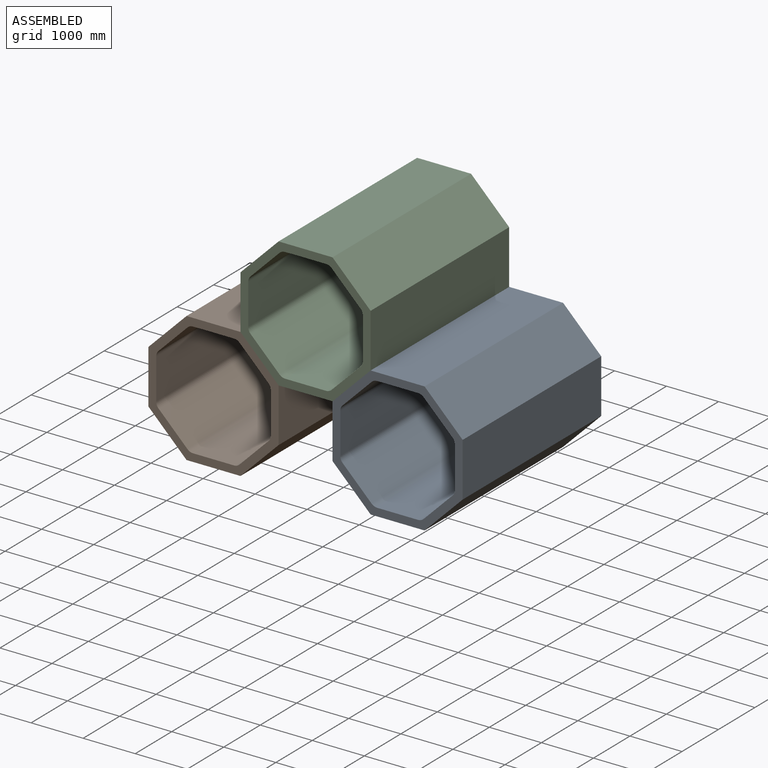
[diagram: assembled view]
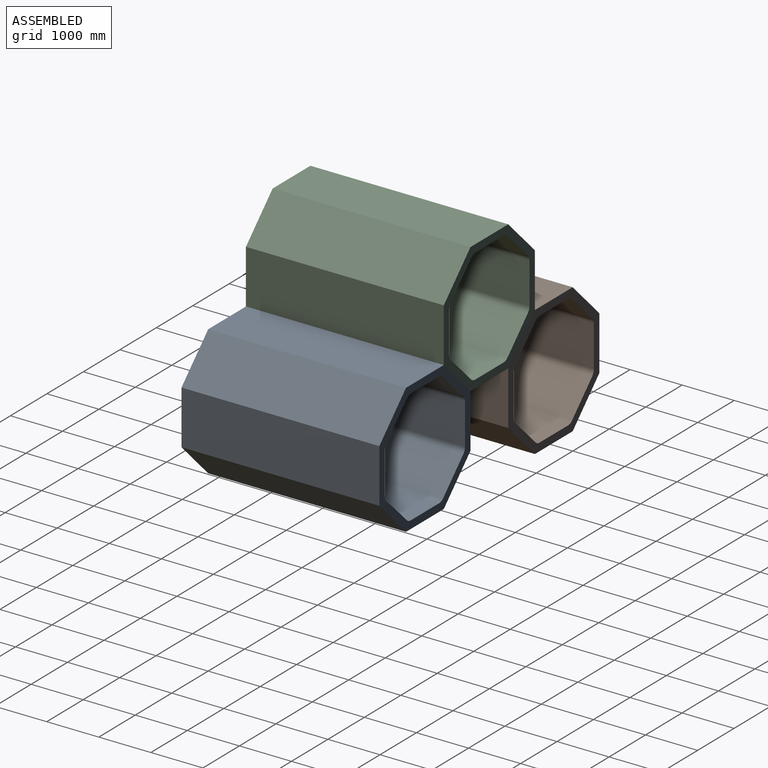
[diagram: assembled view, second angle]
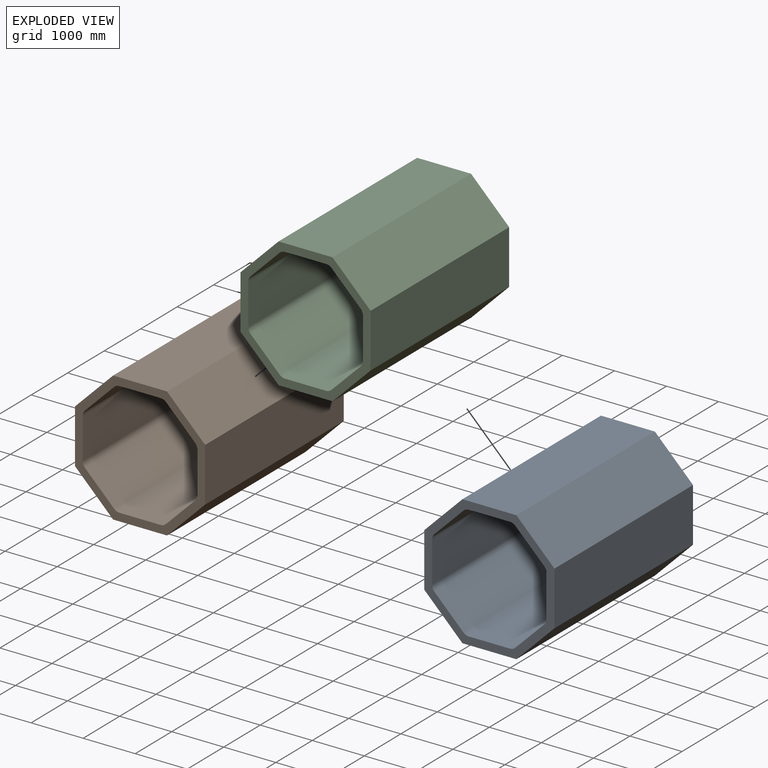
[diagram: exploded view]
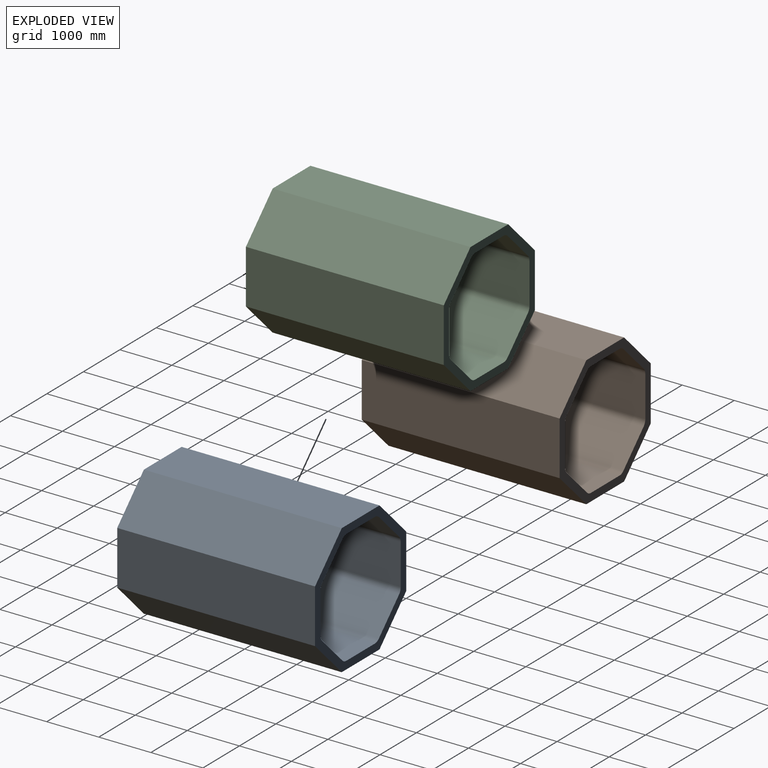
[diagram: exploded view, second angle]
ASSEMBLY  parts=3 mates=2
PART A: 26 faces, bbox 2500x3800x2500 mm
  f0: cylinder r=150mm len=3800mm, axis (0,1,0), area 447677mm2, adj f1,f23,f24,f25
  f1: plane 3800x787.01mm, normal (-1,0,0), area 2990621.9mm2, adj f0,f2,f24,f25
  f2: cylinder r=150mm len=3800mm, axis (0,1,0), area 447677mm2, adj f1,f3,f24,f25
  f3: plane 3800x556.5mm, normal (-0.71,0,0.71), area 2990621.9mm2, adj f2,f4,f24,f25
  f4: cylinder r=150mm len=3800mm, axis (0,1,0), area 447677mm2, adj f3,f5,f24,f25
  f5: plane 3800x787.01mm, normal (0,0,1), area 2990621.9mm2, adj f4,f6,f24,f25
  f6: cylinder r=150mm len=3800mm, axis (0,1,0), area 447677mm2, adj f5,f7,f24,f25
  f7: plane 3800x556.5mm, normal (0.71,0,0.71), area 2990621.9mm2, adj f6,f8,f24,f25
  f8: cylinder r=150mm len=3800mm, axis (0,1,0), area 447677mm2, adj f7,f9,f24,f25
  f9: plane 3800x787.01mm, normal (1,0,0), area 2990621.9mm2, adj f8,f10,f24,f25
  f10: cylinder r=150mm len=3800mm, axis (0,1,0), area 447677mm2, adj f9,f11,f24,f25
  f11: plane 3800x556.5mm, normal (0.71,0,-0.71), area 2990621.9mm2, adj f10,f12,f24,f25
  f12: cylinder r=150mm len=3800mm, axis (0,1,0), area 447677mm2, adj f11,f13,f24,f25
  f13: plane 3800x787.01mm, normal (0,0,-1), area 2990621.9mm2, adj f12,f14,f24,f25
  f14: cylinder r=150mm len=3800mm, axis (0,1,0), area 447677mm2, adj f13,f23,f24,f25
  f15: plane 3800x732.23mm, normal (0.71,0,0.71), area 3935028.8mm2, adj f16,f22,f24,f25
  f16: plane 3800x1035.53mm, normal (0,0,1), area 3935028.8mm2, adj f15,f17,f24,f25
  f17: plane 3800x732.23mm, normal (-0.71,0,0.71), area 3935028.8mm2, adj f16,f18,f24,f25
  f18: plane 3800x1035.53mm, normal (-1,0,0), area 3935028.8mm2, adj f17,f19,f24,f25
  f19: plane 3800x732.23mm, normal (-0.71,0,-0.71), area 3935028.8mm2, adj f18,f20,f24,f25
  f20: plane 3800x1035.53mm, normal (0,0,-1), area 3935028.8mm2, adj f19,f21,f24,f25
  f21: plane 3800x732.23mm, normal (0.71,0,-0.71), area 3935028.8mm2, adj f20,f22,f24,f25
  f22: plane 3800x1035.53mm, normal (1,0,0), area 3935028.8mm2, adj f15,f21,f24,f25
  f23: plane 3800x556.5mm, normal (-0.71,0,-0.71), area 2990621.9mm2, adj f0,f14,f24,f25
  f24: plane 2500x2500mm, normal (0,-1,0), area 1171954.9mm2, adj f0,f1,f2,f3,f4,f5,f6,f7
  f25: plane 2500x2500mm, normal (0,1,0), area 1171954.9mm2, adj f0,f1,f2,f3,f4,f5,f6,f7
PART B: same geometry as A
PART C: same geometry as A
PLACE A t=(1767.77,0,-1767.77)mm
PLACE B t=(-1767.77,0,-1767.77)mm
PLACE C at identity fixed
MATE planar B.f15 <-> C.f19  axis (0.71,0,0.71) through (-883.88,0,-883.88)mm
MATE planar C.f21 <-> A.f17  axis (0.71,0,-0.71) through (883.88,0,-883.88)mm
